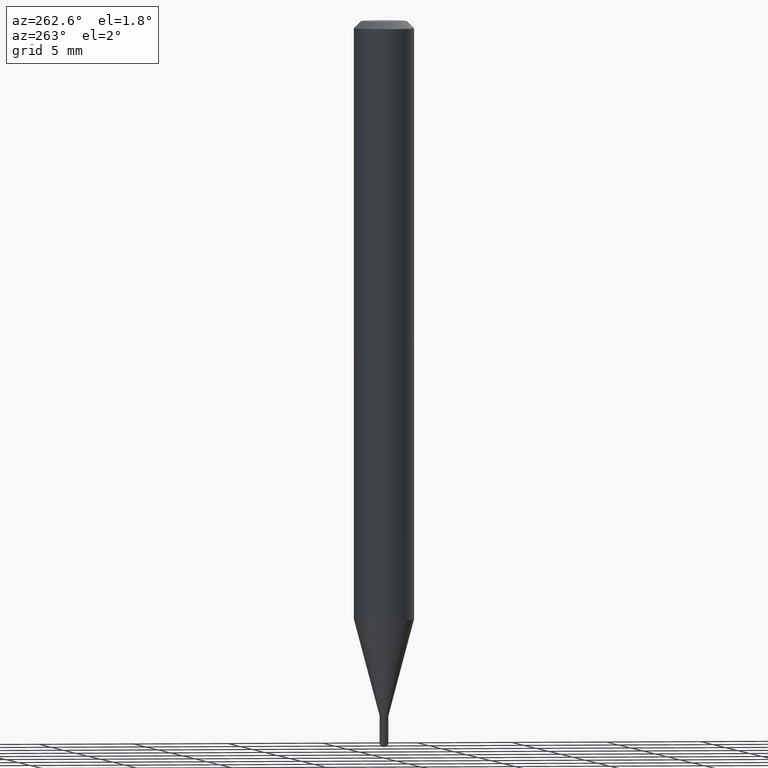
[diagram: clean part render]
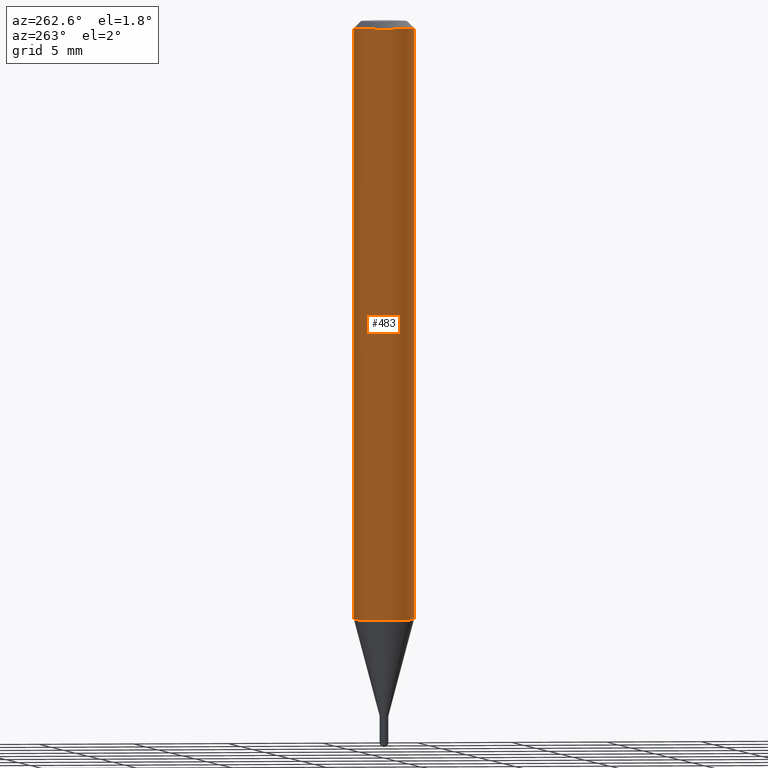
[diagram: same view with one face highlighted and labeled with its STEP entity id]
A machine part, auxiliary view. The second image highlights one B-rep face of the part: STEP entity #483.
In plain terms, the highlighted cylindrical surface (edge-blend (fillet) strip) has radius 1.5875 mm, axis along (-0, 0, 1).
Its self-contained STEP definition (entity closure, byte-faithful):
#9 = LINE ( 'NONE', #166, #460 ) ;
#24 = EDGE_CURVE ( 'NONE', #465, #103, #496, .T. ) ;
#36 = DIRECTION ( 'NONE',  ( -2.445453937894507542E-29, 3.491502631081576772E-15, 1.000000000000000000 ) ) ;
#44 = EDGE_CURVE ( 'NONE', #171, #203, #272, .T. ) ;
#45 = DIRECTION ( 'NONE',  ( -2.445453937894507542E-29, 3.491502631081576772E-15, 1.000000000000000000 ) ) ;
#47 = AXIS2_PLACEMENT_3D ( 'NONE', #466, #383, #69 ) ;
#55 = CYLINDRICAL_SURFACE ( 'NONE', #156, 0.06250000000000000000 ) ;
#69 = DIRECTION ( 'NONE',  ( -6.982962677686265922E-15, -1.000000000000000000, 4.370956789862821150E-15 ) ) ;
#103 = VERTEX_POINT ( 'NONE', #336 ) ;
#134 = ORIENTED_EDGE ( 'NONE', *, *, #24, .F. ) ;
#156 = AXIS2_PLACEMENT_3D ( 'NONE', #440, #410, #210 ) ;
#166 = CARTESIAN_POINT ( 'NONE',  ( 4.440892098500625669E-16, 0.06250000000000000000, -2.182189144425985483E-16 ) ) ;
#171 = VERTEX_POINT ( 'NONE', #498 ) ;
#187 = AXIS2_PLACEMENT_3D ( 'NONE', #395, #45, #258 ) ;
#203 = VERTEX_POINT ( 'NONE', #428 ) ;
#210 = DIRECTION ( 'NONE',  ( -6.982962677686265922E-15, -1.000000000000000000, 3.491502631081576772E-15 ) ) ;
#212 = EDGE_CURVE ( 'NONE', #203, #103, #377, .T. ) ;
#222 = ORIENTED_EDGE ( 'NONE', *, *, #212, .T. ) ;
#257 = EDGE_LOOP ( 'NONE', ( #366, #497, #222, #134 ) ) ;
#258 = DIRECTION ( 'NONE',  ( -6.982962677686265922E-15, -1.000000000000000000, 3.483106191921935554E-15 ) ) ;
#267 = VECTOR ( 'NONE', #36, 39.37007874015748143 ) ;
#272 = CIRCLE ( 'NONE', #47, 0.06250000000000000000 ) ;
#336 = CARTESIAN_POINT ( 'NONE',  ( -4.364351673553912750E-16, -0.06250000000000005551, -0.01499999999999979128 ) ) ;
#365 = FACE_OUTER_BOUND ( 'NONE', #257, .T. ) ;
#366 = ORIENTED_EDGE ( 'NONE', *, *, #447, .F. ) ;
#370 = CARTESIAN_POINT ( 'NONE',  ( 4.440892098500929873E-16, 0.06249999999999995143, -0.01500000000000022669 ) ) ;
#377 = LINE ( 'NONE', #386, #267 ) ;
#383 = DIRECTION ( 'NONE',  ( -2.445453937894507542E-29, 3.491502631081576772E-15, 1.000000000000000000 ) ) ;
#386 = CARTESIAN_POINT ( 'NONE',  ( -4.364351673553916201E-16, -0.06250000000000000000, 2.182189144425985483E-16 ) ) ;
#395 = CARTESIAN_POINT ( 'NONE',  ( 3.668180906841763485E-31, -5.237253946622367771E-17, -0.01500000000000000812 ) ) ;
#407 = DIRECTION ( 'NONE',  ( -2.445453937894507542E-29, 3.491502631081576772E-15, 1.000000000000000000 ) ) ;
#410 = DIRECTION ( 'NONE',  ( -2.445453937894507542E-29, 3.491502631081576772E-15, 1.000000000000000000 ) ) ;
#428 = CARTESIAN_POINT ( 'NONE',  ( -4.364351673553614462E-16, -0.06250000000000431599, -1.236335281795065466 ) ) ;
#440 = CARTESIAN_POINT ( 'NONE',  ( 0.000000000000000000, 0.000000000000000000, 0.000000000000000000 ) ) ;
#447 = EDGE_CURVE ( 'NONE', #171, #465, #9, .T. ) ;
#460 = VECTOR ( 'NONE', #407, 39.37007874015748143 ) ;
#465 = VERTEX_POINT ( 'NONE', #370 ) ;
#466 = CARTESIAN_POINT ( 'NONE',  ( 3.023400983423658885E-29, -4.316667889286455172E-15, -1.236335281795065688 ) ) ;
#483 = ADVANCED_FACE ( 'NONE', ( #365 ), #55, .T. ) ;
#496 = CIRCLE ( 'NONE', #187, 0.06250000000000000000 ) ;
#497 = ORIENTED_EDGE ( 'NONE', *, *, #44, .T. ) ;
#498 = CARTESIAN_POINT ( 'NONE',  ( 4.440892098500925929E-16, 0.06249999999999566319, -1.236335281795066132 ) ) ;